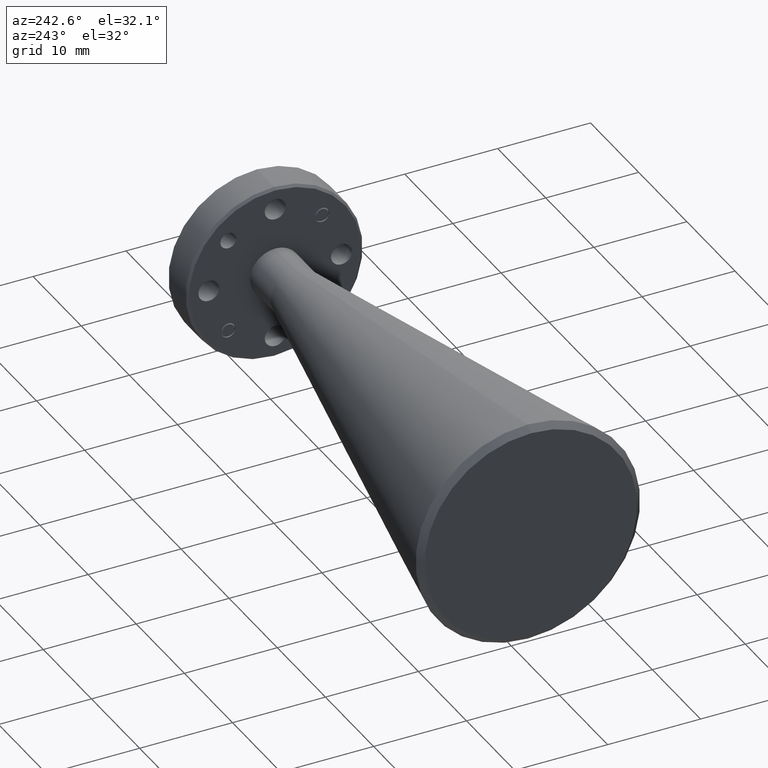
[diagram: clean part render]
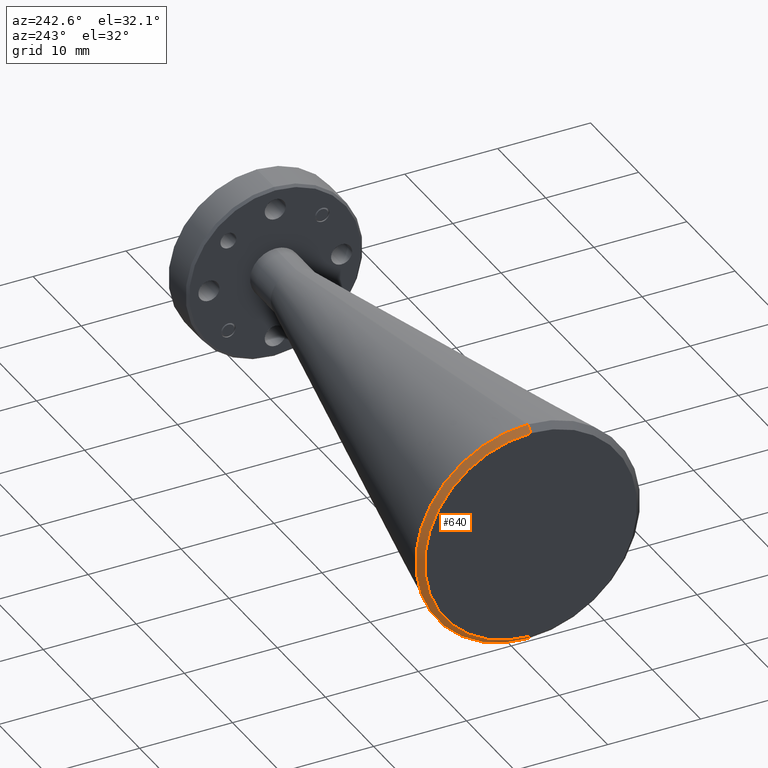
[diagram: same view with one face highlighted and labeled with its STEP entity id]
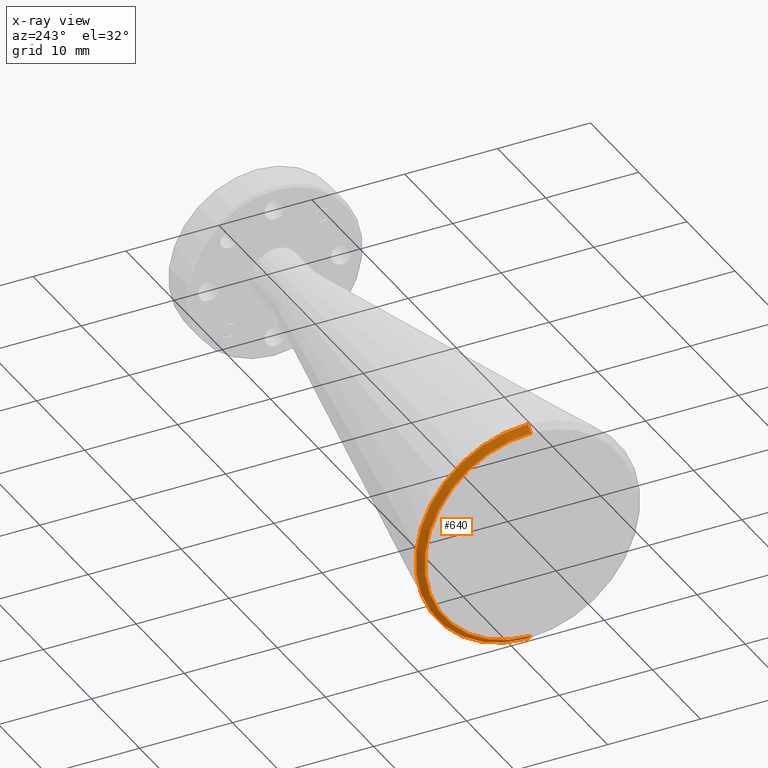
[diagram: x-ray of the same camera — body ghosted, the highlighted face saturated]
A machine part, auxiliary view. The second image highlights one B-rep face of the part: STEP entity #640.
The next image is the same camera in x-ray: the body ghosted, the highlighted face saturated — about 0% of this face is hidden behind the body in this view.
In plain terms, the highlighted conical surface has half-angle 45 deg.
Its self-contained STEP definition (entity closure, byte-faithful):
#118 = DIRECTION ( 'NONE',  ( 0.7071067811865503483, 8.659560562354898346E-17, 0.7071067811865446862 ) ) ;
#335 = ORIENTED_EDGE ( 'NONE', *, *, #532, .F. ) ;
#361 = DIRECTION ( 'NONE',  ( 0.000000000000000000, 0.000000000000000000, -1.000000000000000000 ) ) ;
#391 = VERTEX_POINT ( 'NONE', #1183 ) ;
#454 = CARTESIAN_POINT ( 'NONE',  ( -0.4603798095742503982, 1.132380905805825178, 1.704787461640207225 ) ) ;
#532 = EDGE_CURVE ( 'NONE', #2335, #2019, #1620, .T. ) ;
#628 = ORIENTED_EDGE ( 'NONE', *, *, #1153, .F. ) ;
#640 = ADVANCED_FACE ( 'NONE', ( #2206 ), #1238, .T. ) ;
#641 = VERTEX_POINT ( 'NONE', #1669 ) ;
#740 = CIRCLE ( 'NONE', #2082, 0.4756176277526365515 ) ;
#746 = VECTOR ( 'NONE', #1103, 39.37007874015748143 ) ;
#748 = CARTESIAN_POINT ( 'NONE',  ( -0.4352621818216149130, 1.132380905805825178, 1.254287461640205992 ) ) ;
#931 = CARTESIAN_POINT ( 'NONE',  ( -0.4352621818216151905, 1.132380905805825178, 1.254287461640205992 ) ) ;
#945 = DIRECTION ( 'NONE',  ( 1.000000000000000000, -0.000000000000000000, -0.000000000000000000 ) ) ;
#1050 = DIRECTION ( 'NONE',  ( -1.000000000000000000, 0.000000000000000000, 0.000000000000000000 ) ) ;
#1103 = DIRECTION ( 'NONE',  ( 0.7071067811865503483, 0.000000000000000000, -0.7071067811865446862 ) ) ;
#1127 = LINE ( 'NONE', #1851, #746 ) ;
#1153 = EDGE_CURVE ( 'NONE', #391, #641, #740, .T. ) ;
#1183 = CARTESIAN_POINT ( 'NONE',  ( -0.4352621818216151905, 1.132380905805825178, 0.7786698338875694958 ) ) ;
#1238 = CONICAL_SURFACE ( 'NONE', #1310, 0.4756176277526364404, 0.7853981633974442822 ) ;
#1310 = AXIS2_PLACEMENT_3D ( 'NONE', #748, #2193, #361 ) ;
#1359 = EDGE_LOOP ( 'NONE', ( #335, #1855, #628, #1983 ) ) ;
#1600 = VECTOR ( 'NONE', #118, 39.37007874015748143 ) ;
#1606 = DIRECTION ( 'NONE',  ( 0.000000000000000000, 0.000000000000000000, 1.000000000000000000 ) ) ;
#1620 = CIRCLE ( 'NONE', #1879, 0.4505000000000011218 ) ;
#1669 = CARTESIAN_POINT ( 'NONE',  ( -0.4352621818216151905, 1.132380905805825178, 1.729905089392842488 ) ) ;
#1676 = DIRECTION ( 'NONE',  ( 0.000000000000000000, 0.000000000000000000, -1.000000000000000000 ) ) ;
#1775 = CARTESIAN_POINT ( 'NONE',  ( -0.4603798095742503982, 1.132380905805825178, 0.8037874616402048700 ) ) ;
#1787 = EDGE_CURVE ( 'NONE', #2019, #391, #1127, .T. ) ;
#1851 = CARTESIAN_POINT ( 'NONE',  ( -0.4352621818216149130, 1.132380905805825178, 0.7786698338875696068 ) ) ;
#1855 = ORIENTED_EDGE ( 'NONE', *, *, #1947, .T. ) ;
#1879 = AXIS2_PLACEMENT_3D ( 'NONE', #2299, #1050, #1606 ) ;
#1947 = EDGE_CURVE ( 'NONE', #2335, #641, #2155, .T. ) ;
#1983 = ORIENTED_EDGE ( 'NONE', *, *, #1787, .F. ) ;
#2019 = VERTEX_POINT ( 'NONE', #1775 ) ;
#2082 = AXIS2_PLACEMENT_3D ( 'NONE', #931, #945, #1676 ) ;
#2155 = LINE ( 'NONE', #2315, #1600 ) ;
#2193 = DIRECTION ( 'NONE',  ( 1.000000000000000000, -0.000000000000000000, -0.000000000000000000 ) ) ;
#2206 = FACE_OUTER_BOUND ( 'NONE', #1359, .T. ) ;
#2299 = CARTESIAN_POINT ( 'NONE',  ( -0.4603798095742503982, 1.132380905805825178, 1.254287461640205992 ) ) ;
#2315 = CARTESIAN_POINT ( 'NONE',  ( -0.4352621818216149130, 1.132380905805825178, 1.729905089392842488 ) ) ;
#2335 = VERTEX_POINT ( 'NONE', #454 ) ;